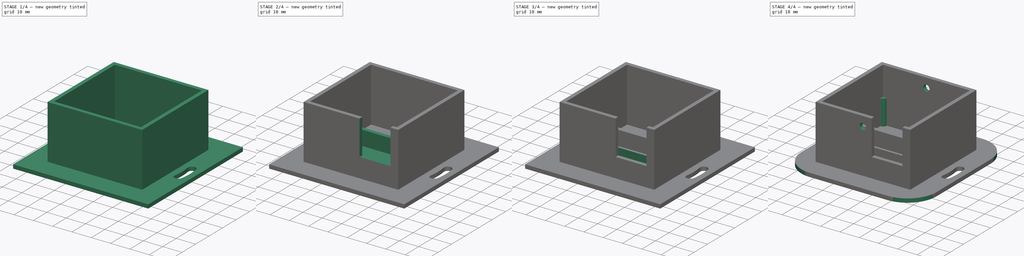
[diagram: build sequence overview — one tinted view per stage of 4, left to right]
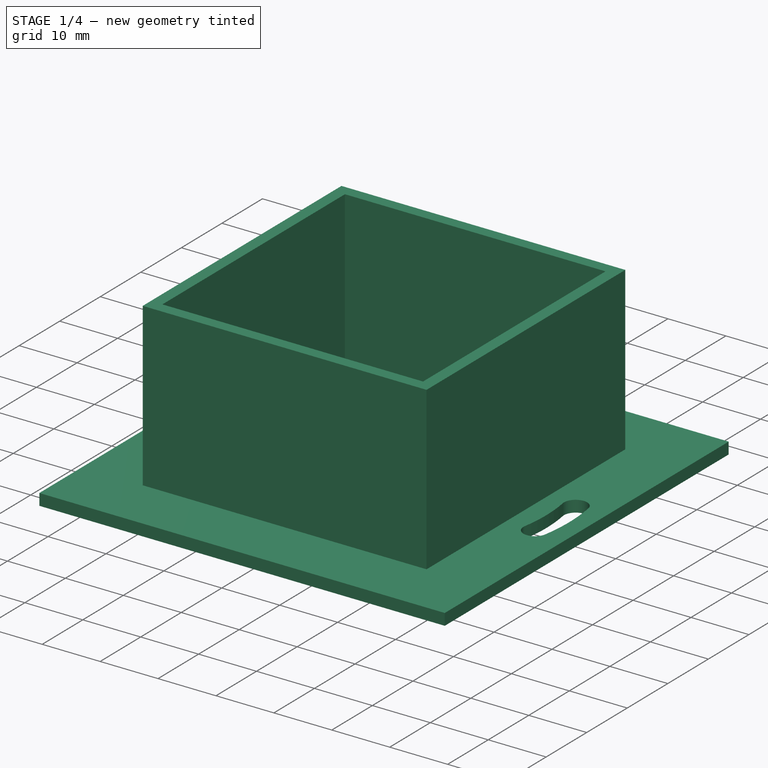
[diagram: stage 1 of 4 — iso view after this stage's code; geometry added in this stage tinted green]
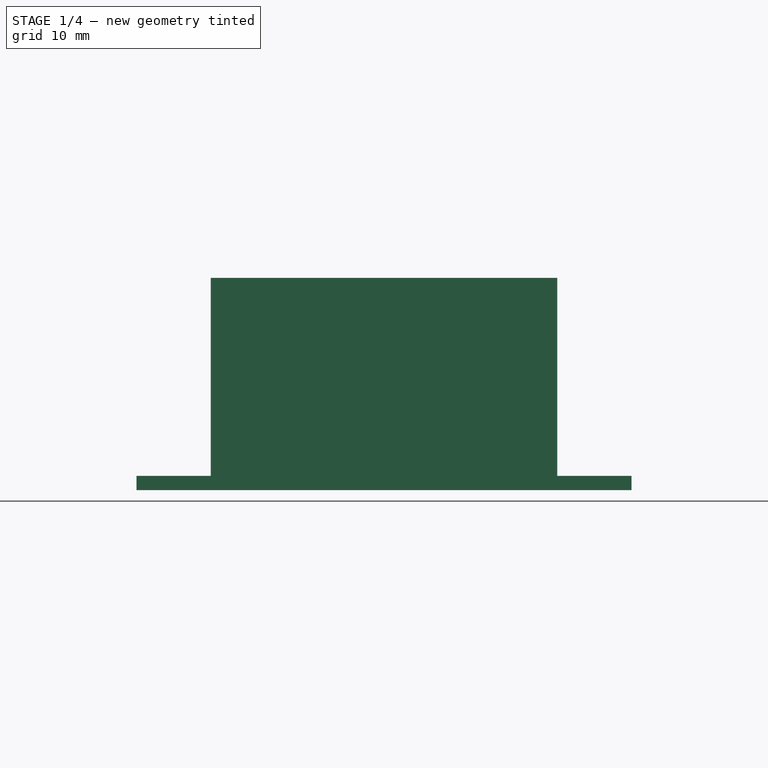
[diagram: stage 1 of 4 — front view after this stage's code; geometry added in this stage tinted green]
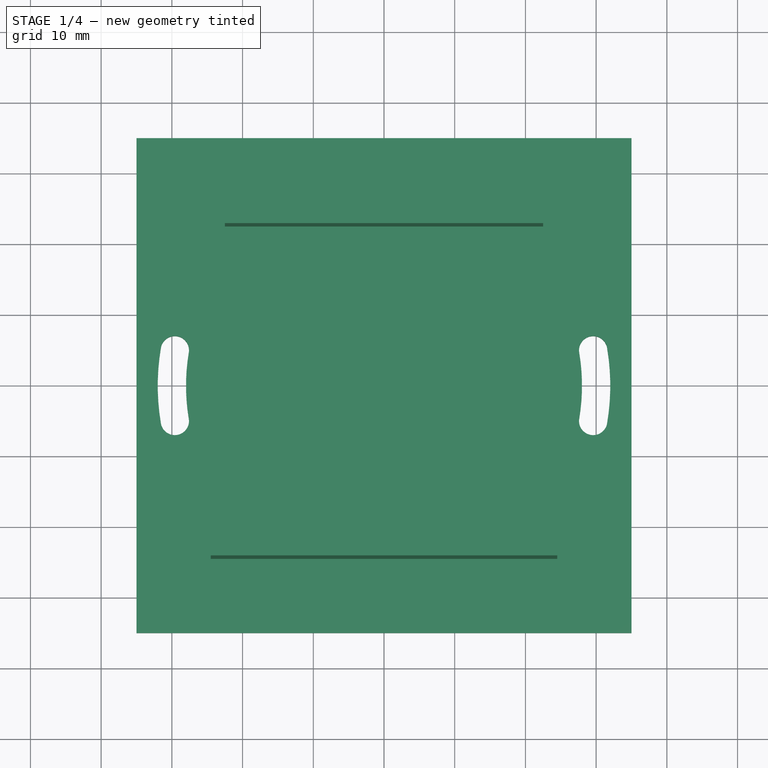
[diagram: stage 1 of 4 — top view after this stage's code; geometry added in this stage tinted green]
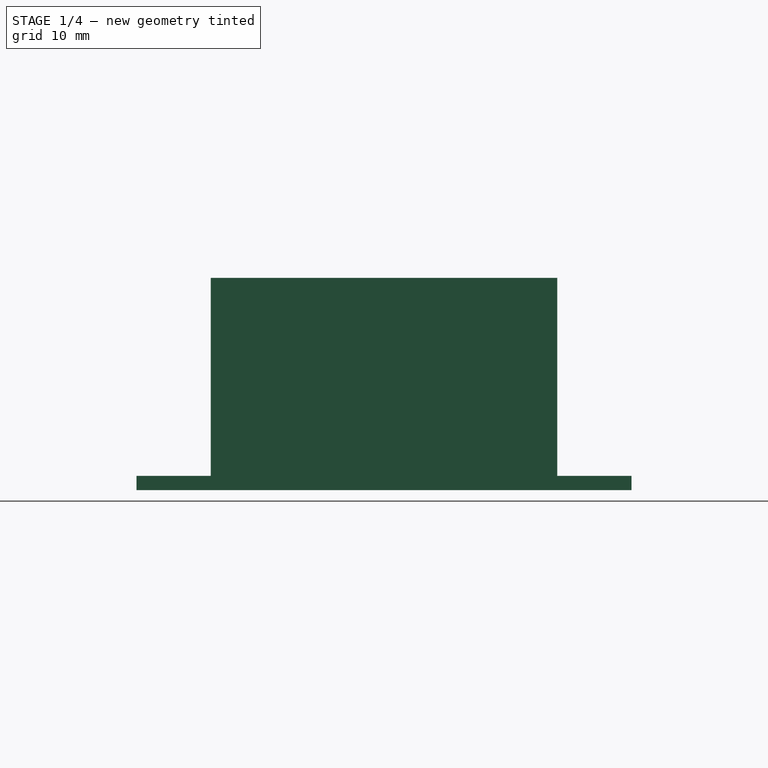
[diagram: stage 1 of 4 — right view after this stage's code; geometry added in this stage tinted green]
FCSTD DOCUMENT  (FreeCAD 0.19R)
Label: box
License: All rights reserved
LicenseURL: http://en.wikipedia.org/wiki/All_rights_reserved
objects: Sketcher::SketchObject×11, PartDesign::Pocket×6, PartDesign::Pad×5, PartDesign::Fillet×1, PartDesign::Body×1
note: 36 computed .brp shape members not serialized (recipe doc carries the construction recipe); baked Part::Feature solids carry a one-line shape summary decoded from their .brp

FEATURE [Sketcher::SketchObject] Sketch
  FullyConstrained = true
  MapMode = 5
  Support = -> [XY_Plane]
  sketch-geometry (12):
    g0: LineSegment StartX=-35 StartY=35 StartZ=0 EndX=35 EndY=35 EndZ=0
    g1: LineSegment StartX=35 StartY=35 StartZ=0 EndX=35 EndY=-35 EndZ=0
    g2: LineSegment StartX=35 StartY=-35 StartZ=0 EndX=-35 EndY=-35 EndZ=0
    g3: LineSegment StartX=-35 StartY=-35 StartZ=0 EndX=-35 EndY=35 EndZ=0
    g4: ArcOfCircle CenterX=0 CenterY=0 CenterZ=0 NormalX=0 NormalY=0 NormalZ=1 AngleXU=0 Radius=28 StartAngle=6.11574 EndAngle=6.45063
    g5: ArcOfCircle CenterX=0 CenterY=0 CenterZ=0 NormalX=0 NormalY=0 NormalZ=1 AngleXU=0 Radius=32 StartAngle=6.11574 EndAngle=6.45063
    g6: ArcOfCircle CenterX=0 CenterY=0 CenterZ=0 NormalX=0 NormalY=0 NormalZ=1 AngleXU=0 Radius=28 StartAngle=2.97414 EndAngle=3.30904
    g7: ArcOfCircle CenterX=0 CenterY=0 CenterZ=0 NormalX=0 NormalY=0 NormalZ=1 AngleXU=0 Radius=32 StartAngle=2.97414 EndAngle=3.30904
    g8: ArcOfCircle CenterX=-29.5804 CenterY=5 CenterZ=0 NormalX=0 NormalY=0 NormalZ=1 AngleXU=0 Radius=2 StartAngle=6.11574 EndAngle=9.25733
    g9: ArcOfCircle CenterX=-29.5804 CenterY=-5 CenterZ=0 NormalX=0 NormalY=0 NormalZ=1 AngleXU=0 Radius=2 StartAngle=3.30904 EndAngle=6.45063
    g10: ArcOfCircle CenterX=29.5804 CenterY=5 CenterZ=0 NormalX=0 NormalY=0 NormalZ=1 AngleXU=0 Radius=2 StartAngle=0.167448 EndAngle=3.30904
    g11: ArcOfCircle CenterX=29.5804 CenterY=-5 CenterZ=0 NormalX=0 NormalY=0 NormalZ=1 AngleXU=0 Radius=2 StartAngle=2.97414 EndAngle=6.11574
  constraints (30):
    c: Coincident(g0,g1)
    c: Coincident(g1,g2)
    c: Coincident(g2,g3)
    c: Coincident(g3,g0)
    c: Horizontal(g2)
    c: Vertical(g3)
    c: DistanceY(g1,g1) = 70
    c: DistanceX(g0,g0) = 70
    c: Symmetric(g0,g0,g-2)
    c: Symmetric(g1,g0,g-1)
    c: Coincident(g4,g-1)
    c: Coincident(g5,g4)
    c: Coincident(g6,g4)
    c: Coincident(g7,g4)
    c: Tangent(g11,g4) = 1.5708
    c: Tangent(g11,g5) = -1.5708
    c: Tangent(g10,g5) = -1.5708
    c: Tangent(g10,g4) = 1.5708
    c: Radius(g10) = 2
    c: Tangent(g8,g6) = 1.5708
    c: Tangent(g8,g7) = -1.5708
    c: Tangent(g9,g6) = 1.5708
    c: Tangent(g9,g7) = -1.5708
    c: Equal(g10,g8)
    c: Horizontal(g6,g4)
    c: Horizontal(g6,g4)
    c: Radius(g4) = 28
    c: Radius(g6) = 28
    c: DistanceY(g-1,g8) = 5
    c: DistanceY(g9,g-1) = 5
FEATURE [PartDesign::Pad] Pad
  Direction = (1,1,1)
  Length = 2
  Length2 = 100
  Profile = -> Sketch
  Type = 0
FEATURE [Sketcher::SketchObject] Sketch001
  FullyConstrained = true
  MapMode = 5
  Placement = pos=(0,0,2) rot=(0,0,1;0rad)
  Support = -> [Pad]
  sketch-geometry (4):
    g0: LineSegment StartX=-24.5 StartY=24.5 StartZ=0 EndX=24.5 EndY=24.5 EndZ=0
    g1: LineSegment StartX=24.5 StartY=24.5 StartZ=0 EndX=24.5 EndY=-24.5 EndZ=0
    g2: LineSegment StartX=24.5 StartY=-24.5 StartZ=0 EndX=-24.5 EndY=-24.5 EndZ=0
    g3: LineSegment StartX=-24.5 StartY=-24.5 StartZ=0 EndX=-24.5 EndY=24.5 EndZ=0
  constraints (10):
    c: Coincident(g0,g1)
    c: Coincident(g1,g2)
    c: Coincident(g2,g3)
    c: Coincident(g3,g0)
    c: Horizontal(g2)
    c: Vertical(g3)
    c: DistanceX(g0,g0) = 49
    c: DistanceY(g1,g1) = 49
    c: Symmetric(g1,g0,g-1)
    c: Symmetric(g0,g0,g-2)
FEATURE [PartDesign::Pad] Pad001
  BaseFeature = -> Pad
  Direction = (1,1,1)
  Length = 28
  Length2 = 100
  Profile = -> Sketch001
  Type = 0
FEATURE [Sketcher::SketchObject] Sketch002
  FullyConstrained = true
  MapMode = 5
  Placement = pos=(0,0,30) rot=(0,0,1;0rad)
  Support = -> [Pad001]
  sketch-geometry (4):
    g0: LineSegment StartX=-22.5 StartY=22.5 StartZ=0 EndX=22.5 EndY=22.5 EndZ=0
    g1: LineSegment StartX=22.5 StartY=22.5 StartZ=0 EndX=22.5 EndY=-22.5 EndZ=0
    g2: LineSegment StartX=22.5 StartY=-22.5 StartZ=0 EndX=-22.5 EndY=-22.5 EndZ=0
    g3: LineSegment StartX=-22.5 StartY=-22.5 StartZ=0 EndX=-22.5 EndY=22.5 EndZ=0
  constraints (10):
    c: Coincident(g0,g1)
    c: Coincident(g1,g2)
    c: Coincident(g2,g3)
    c: Coincident(g3,g0)
    c: Horizontal(g2)
    c: Vertical(g3)
    c: DistanceX(g0,g0) = 45
    c: DistanceY(g1,g1) = 45
    c: Symmetric(g0,g0,g-2)
    c: Symmetric(g0,g1,g-1)
FEATURE [PartDesign::Pocket] Pocket
  BaseFeature = -> Pad001
  Length = 28
  Length2 = 100
  Profile = -> Sketch002
  Type = 0
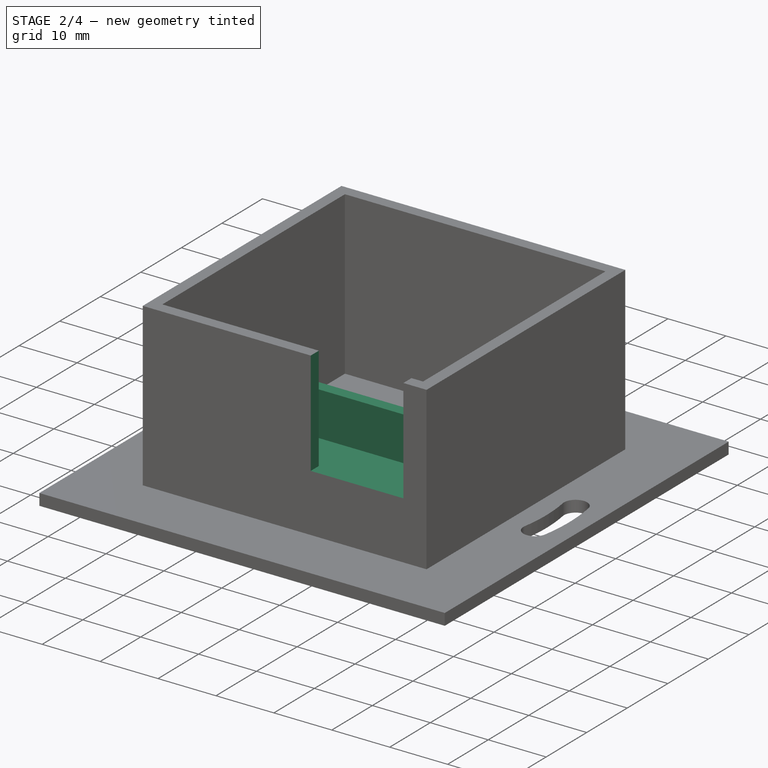
[diagram: stage 2 of 4 — iso view after this stage's code; geometry added in this stage tinted green]
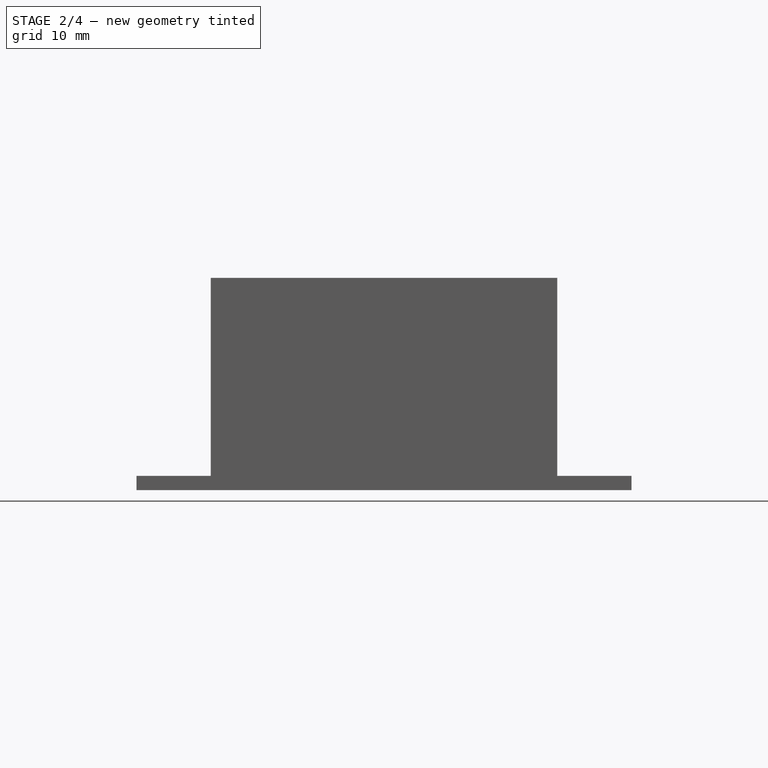
[diagram: stage 2 of 4 — front view after this stage's code; geometry added in this stage tinted green]
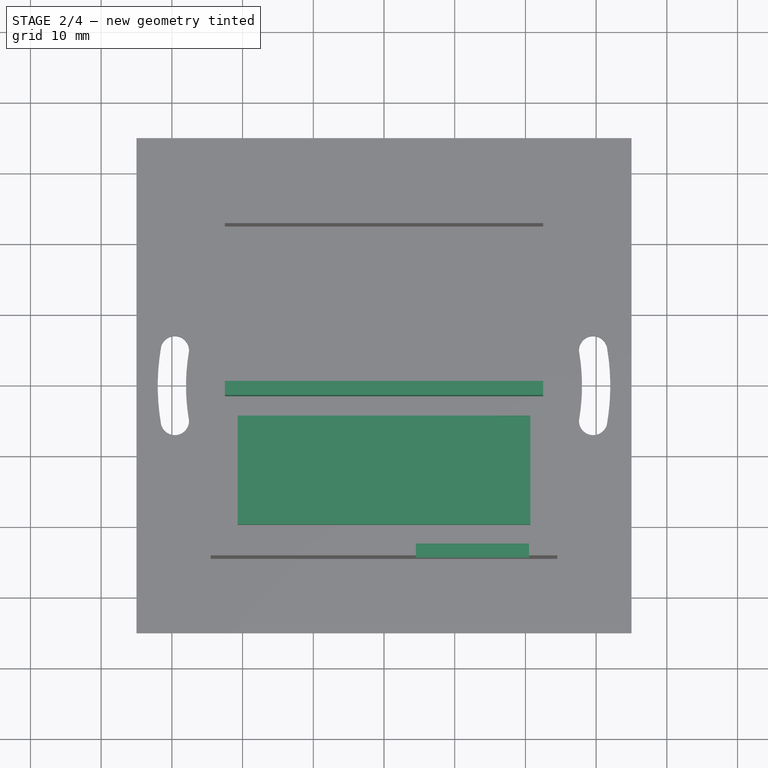
[diagram: stage 2 of 4 — top view after this stage's code; geometry added in this stage tinted green]
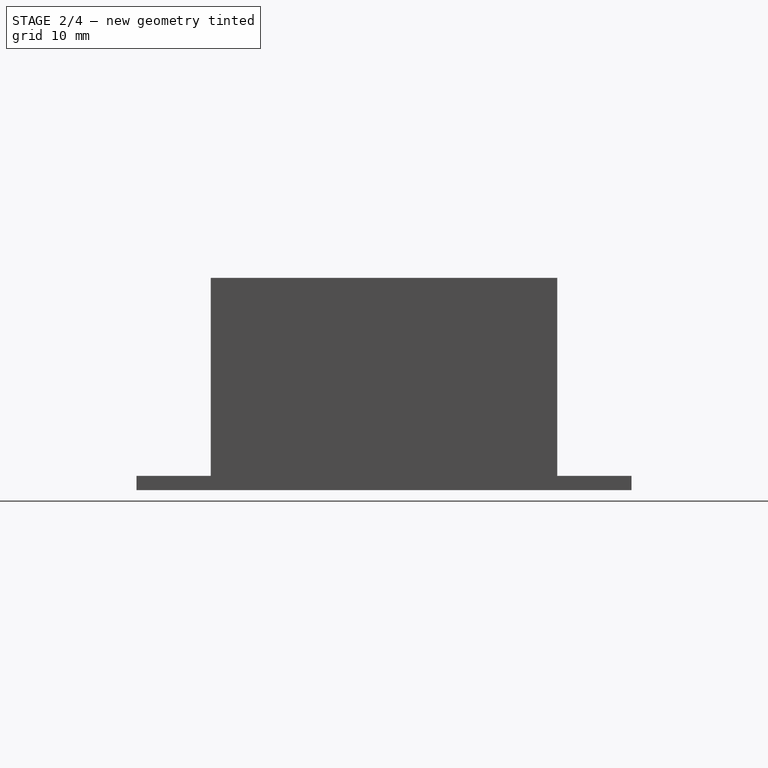
[diagram: stage 2 of 4 — right view after this stage's code; geometry added in this stage tinted green]
FEATURE [Sketcher::SketchObject] Sketch003
  FullyConstrained = false
  MapMode = 5
  Placement = pos=(0,0,30) rot=(0,0,1;0rad)
  Support = -> [Pocket]
  sketch-geometry (4):
    g0: LineSegment StartX=4.5 StartY=-18.2576 StartZ=0 EndX=20.5 EndY=-18.2576 EndZ=0
    g1: LineSegment StartX=20.5 StartY=-18.2576 StartZ=0 EndX=20.5 EndY=-29.3564 EndZ=0
    g2: LineSegment StartX=20.5 StartY=-29.3564 StartZ=0 EndX=4.5 EndY=-29.3564 EndZ=0
    g3: LineSegment StartX=4.5 StartY=-29.3564 StartZ=0 EndX=4.5 EndY=-18.2576 EndZ=0
  constraints (10):
    c: Coincident(g0,g1)
    c: Coincident(g1,g2)
    c: Coincident(g2,g3)
    c: Coincident(g3,g0)
    c: Horizontal(g0)
    c: Horizontal(g2)
    c: Vertical(g1)
    c: Vertical(g3)
    c: DistanceX(g0,g0) = 16
    c: DistanceX(g-1,g0) = 20.5
FEATURE [PartDesign::Pocket] Pocket001
  BaseFeature = -> Pocket
  Length = 18
  Length2 = 100
  Profile = -> Sketch003
  Type = 0
FEATURE [Sketcher::SketchObject] Sketch004
  FullyConstrained = true
  MapMode = 5
  Placement = pos=(0,0,2) rot=(0,0,1;0rad)
  Support = -> [Pocket001]
  sketch-geometry (4):
    g0: LineSegment StartX=-22.5 StartY=0.5 StartZ=0 EndX=22.5 EndY=0.5 EndZ=0
    g1: LineSegment StartX=22.5 StartY=0.5 StartZ=0 EndX=22.5 EndY=-1.5 EndZ=0
    g2: LineSegment StartX=22.5 StartY=-1.5 StartZ=0 EndX=-22.5 EndY=-1.5 EndZ=0
    g3: LineSegment StartX=-22.5 StartY=-1.5 StartZ=0 EndX=-22.5 EndY=0.5 EndZ=0
  constraints (11):
    c: Coincident(g0,g1)
    c: Vertical(g1)
    c: Symmetric(g0,g0,g-2)
    c: DistanceX(g0,g0) = 45
    c: DistanceY(g1,g1) = 2
    c: DistanceY(g-1,g0) = 0.5
    c: Coincident(g2,g1)
    c: Horizontal(g2)
    c: Coincident(g3,g2)
    c: Coincident(g3,g0)
    c: Vertical(g3)
FEATURE [PartDesign::Pad] Pad002
  BaseFeature = -> Pocket001
  Direction = (1,1,1)
  Length = 10
  Length2 = 100
  Profile = -> Sketch004
  Type = 0
FEATURE [Sketcher::SketchObject] Sketch005
  FullyConstrained = true
  MapMode = 5
  Placement = pos=(0,0,2) rot=(0,0,1;0rad)
  Support = -> [Pad002]
  sketch-geometry (4):
    g0: LineSegment StartX=-20.7 StartY=-4.3 StartZ=0 EndX=20.7 EndY=-4.3 EndZ=0
    g1: LineSegment StartX=20.7 StartY=-4.3 StartZ=0 EndX=20.7 EndY=-19.7 EndZ=0
    g2: LineSegment StartX=20.7 StartY=-19.7 StartZ=0 EndX=-20.7 EndY=-19.7 EndZ=0
    g3: LineSegment StartX=-20.7 StartY=-19.7 StartZ=0 EndX=-20.7 EndY=-4.3 EndZ=0
  constraints (11):
    c: Coincident(g0,g1)
    c: Coincident(g1,g2)
    c: Coincident(g2,g3)
    c: Coincident(g3,g0)
    c: Horizontal(g0)
    c: Vertical(g1)
    c: Vertical(g3)
    c: DistanceX(g0,g0) = 41.4
    c: DistanceY(g1,g1) = 15.4
    c: Symmetric(g1,g2,g-2)
    c: DistanceY(g0,g-1) = 4.3
FEATURE [PartDesign::Pad] Pad003
  BaseFeature = -> Pad002
  Direction = (1,1,1)
  Length = 4
  Length2 = 100
  Profile = -> Sketch005
  Type = 0
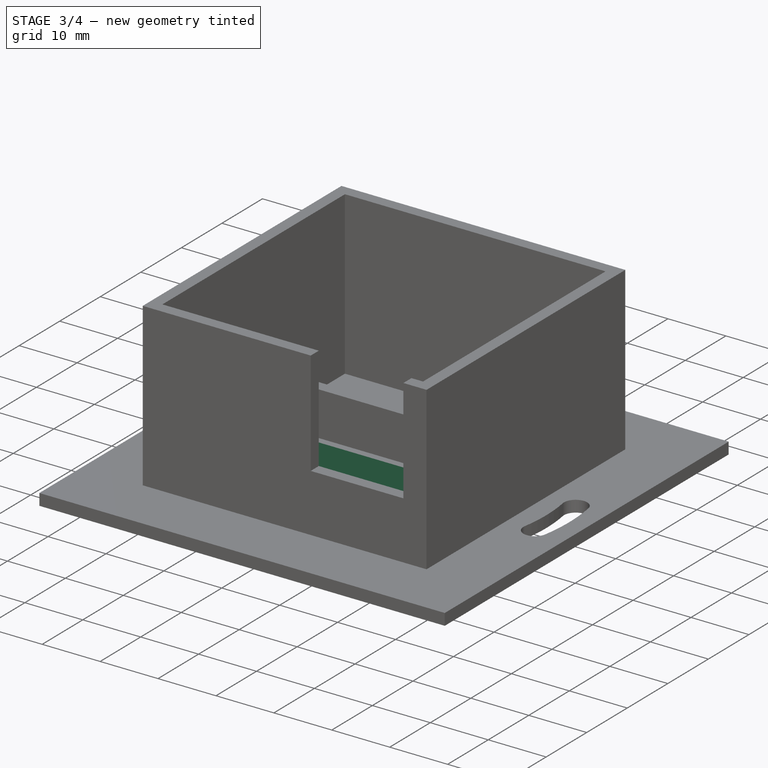
[diagram: stage 3 of 4 — iso view after this stage's code; geometry added in this stage tinted green]
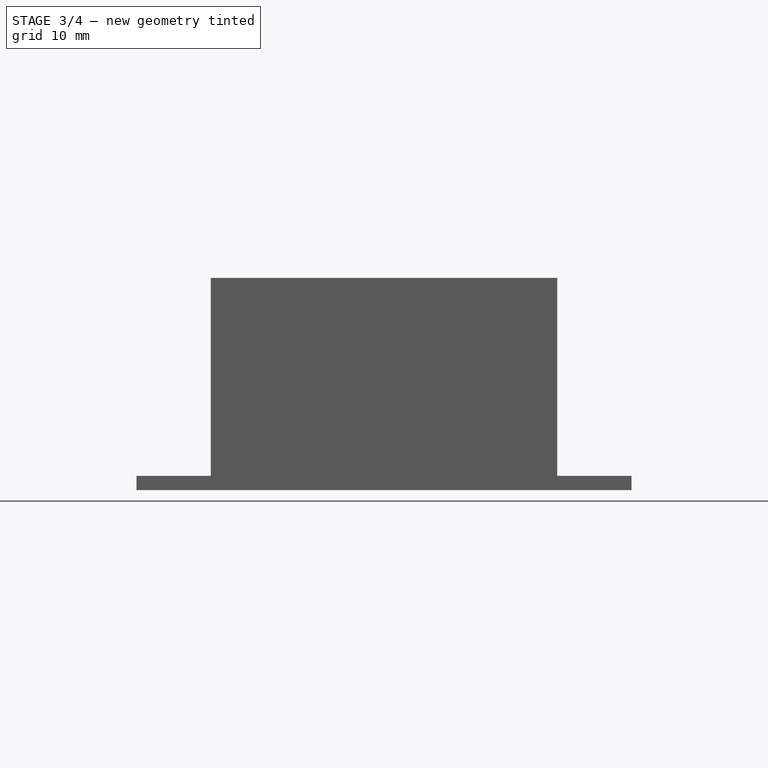
[diagram: stage 3 of 4 — front view after this stage's code; geometry added in this stage tinted green]
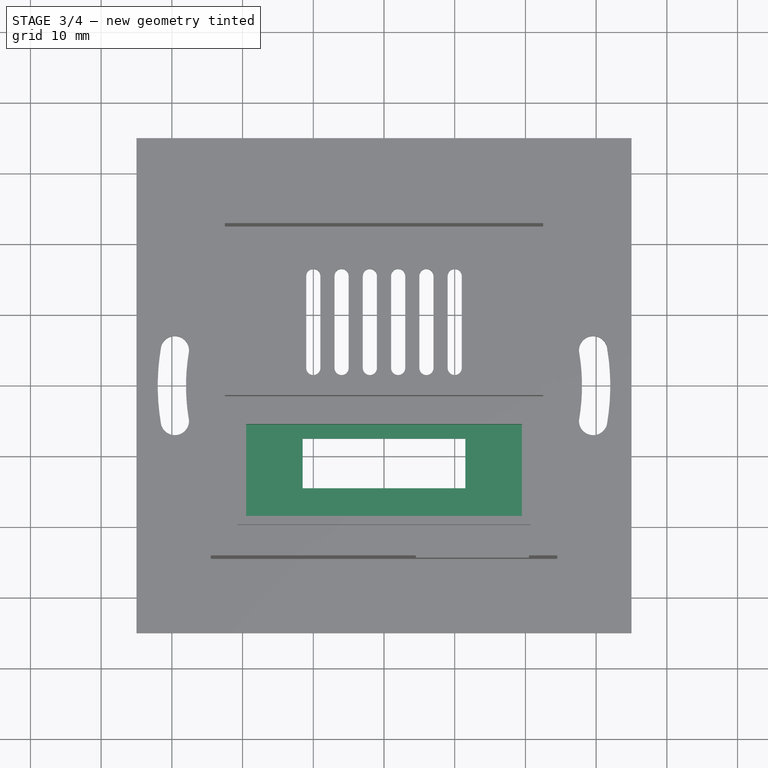
[diagram: stage 3 of 4 — top view after this stage's code; geometry added in this stage tinted green]
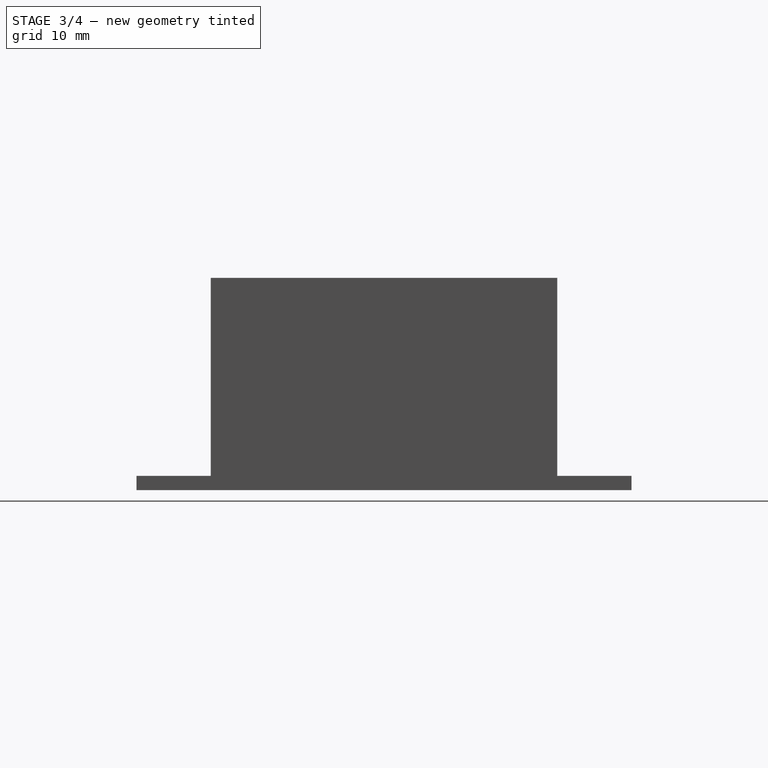
[diagram: stage 3 of 4 — right view after this stage's code; geometry added in this stage tinted green]
FEATURE [Sketcher::SketchObject] Sketch006
  FullyConstrained = true
  MapMode = 5
  Placement = pos=(0,0,6) rot=(0,0,1;0rad)
  Support = -> [Pad003]
  sketch-geometry (4):
    g0: LineSegment StartX=-19.5 StartY=-5.5 StartZ=0 EndX=19.5 EndY=-5.5 EndZ=0
    g1: LineSegment StartX=19.5 StartY=-5.5 StartZ=0 EndX=19.5 EndY=-18.5 EndZ=0
    g2: LineSegment StartX=19.5 StartY=-18.5 StartZ=0 EndX=-19.5 EndY=-18.5 EndZ=0
    g3: LineSegment StartX=-19.5 StartY=-18.5 StartZ=0 EndX=-19.5 EndY=-5.5 EndZ=0
  constraints (11):
    c: Coincident(g0,g1)
    c: Coincident(g1,g2)
    c: Coincident(g2,g3)
    c: Coincident(g3,g0)
    c: Horizontal(g2)
    c: Vertical(g1)
    c: Vertical(g3)
    c: DistanceY(g1,g1) = 13
    c: DistanceX(g0,g0) = 39
    c: Symmetric(g0,g0,g-2)
    c: DistanceY(g0,g-1) = 5.5
FEATURE [PartDesign::Pocket] Pocket002
  BaseFeature = -> Pad003
  Length = 5
  Length2 = 100
  Profile = -> Sketch006
  Type = 0
FEATURE [Sketcher::SketchObject] Sketch007
  FullyConstrained = true
  MapMode = 5
  Placement = pos=(0,0,1) rot=(0,0,1;0rad)
  Support = -> [Pocket002]
  sketch-geometry (4):
    g0: LineSegment StartX=-11.5 StartY=-7.5 StartZ=0 EndX=11.5 EndY=-7.5 EndZ=0
    g1: LineSegment StartX=11.5 StartY=-7.5 StartZ=0 EndX=11.5 EndY=-14.5 EndZ=0
    g2: LineSegment StartX=11.5 StartY=-14.5 StartZ=0 EndX=-11.5 EndY=-14.5 EndZ=0
    g3: LineSegment StartX=-11.5 StartY=-14.5 StartZ=0 EndX=-11.5 EndY=-7.5 EndZ=0
  constraints (11):
    c: Coincident(g0,g1)
    c: Coincident(g1,g2)
    c: Coincident(g2,g3)
    c: Coincident(g3,g0)
    c: Horizontal(g2)
    c: Vertical(g1)
    c: Vertical(g3)
    c: DistanceY(g1,g1) = 7
    c: DistanceX(g0,g0) = 23
    c: Symmetric(g0,g0,g-2)
    c: DistanceY(g0,g-1) = 7.5
FEATURE [PartDesign::Pocket] Pocket003
  BaseFeature = -> Pocket002
  Length = 5
  Length2 = 100
  Profile = -> Sketch007
  Type = 1
FEATURE [Sketcher::SketchObject] Sketch008
  FullyConstrained = true
  MapMode = 5
  Placement = pos=(0,0,2) rot=(0,0,1;0rad)
  Support = -> [Pocket003]
  sketch-geometry (29):
    g0: LineSegment StartX=-11 StartY=15.5 StartZ=0 EndX=-11 EndY=2.5 EndZ=0
    g1: LineSegment StartX=-9 StartY=15.5 StartZ=0 EndX=-9 EndY=2.5 EndZ=0
    g2: LineSegment StartX=-7 StartY=15.5 StartZ=0 EndX=-7 EndY=2.5 EndZ=0
    g3: LineSegment StartX=-5 StartY=15.5 StartZ=0 EndX=-5 EndY=2.5 EndZ=0
    g4: LineSegment StartX=-3 StartY=15.5 StartZ=0 EndX=-3 EndY=2.5 EndZ=0
    g5: LineSegment StartX=-1 StartY=15.5 StartZ=0 EndX=-1 EndY=2.5 EndZ=0
    g6: LineSegment StartX=1 StartY=15.5 StartZ=0 EndX=1 EndY=2.5 EndZ=0
    g7: LineSegment StartX=3 StartY=15.5 StartZ=0 EndX=3 EndY=2.5 EndZ=0
    g8: LineSegment StartX=5 StartY=15.5 StartZ=0 EndX=5 EndY=2.5 EndZ=0
    g9: LineSegment StartX=7 StartY=15.5 StartZ=0 EndX=7 EndY=2.5 EndZ=0
    g10: LineSegment StartX=9 StartY=15.5 StartZ=0 EndX=9 EndY=2.5 EndZ=0
    g11: LineSegment StartX=11 StartY=15.5 StartZ=0 EndX=11 EndY=2.5 EndZ=0
    g12: ArcOfCircle CenterX=-10 CenterY=2.5 CenterZ=0 NormalX=0 NormalY=0 NormalZ=1 AngleXU=0 Radius=1 StartAngle=3.14159 EndAngle=6.28319
    g13: ArcOfCircle CenterX=-6 CenterY=2.5 CenterZ=0 NormalX=0 NormalY=0 NormalZ=1 AngleXU=0 Radius=1 StartAngle=3.14159 EndAngle=6.28319
    g14: ArcOfCircle CenterX=-2 CenterY=2.5 CenterZ=0 NormalX=0 NormalY=0 NormalZ=1 AngleXU=0 Radius=1 StartAngle=3.14159 EndAngle=6.28319
    g15: ArcOfCircle CenterX=2 CenterY=2.5 CenterZ=0 NormalX=0 NormalY=0 NormalZ=1 AngleXU=0 Radius=1 StartAngle=3.14159 EndAngle=6.28319
    g16: ArcOfCircle CenterX=6 CenterY=2.5 CenterZ=0 NormalX=0 NormalY=0 NormalZ=1 AngleXU=0 Radius=1 StartAngle=3.14159 EndAngle=6.28319
    g17: ArcOfCircle CenterX=10 CenterY=2.5 CenterZ=0 NormalX=0 NormalY=0 NormalZ=1 AngleXU=0 Radius=1 StartAngle=3.14159 EndAngle=6.28319
    g18: ArcOfCircle CenterX=10 CenterY=15.5 CenterZ=0 NormalX=0 NormalY=0 NormalZ=1 AngleXU=0 Radius=1 StartAngle=0 EndAngle=3.14159
    g19: ArcOfCircle CenterX=6 CenterY=15.5 CenterZ=0 NormalX=0 NormalY=0 NormalZ=1 AngleXU=0 Radius=1 StartAngle=6e-16 EndAngle=3.14159
    g20: ArcOfCircle CenterX=2 CenterY=15.5 CenterZ=0 NormalX=0 NormalY=0 NormalZ=1 AngleXU=0 Radius=1 StartAngle=0 EndAngle=3.14159
    g21: ArcOfCircle CenterX=-2 CenterY=15.5 CenterZ=0 NormalX=0 NormalY=0 NormalZ=1 AngleXU=0 Radius=1 StartAngle=0 EndAngle=3.14159
    g22: ArcOfCircle CenterX=-6 CenterY=15.5 CenterZ=0 NormalX=0 NormalY=0 NormalZ=1 AngleXU=0 Radius=1 StartAngle=8e-16 EndAngle=3.14159
    g23: ArcOfCircle CenterX=-10 CenterY=15.5 CenterZ=0 NormalX=0 NormalY=0 NormalZ=1 AngleXU=0 Radius=1 StartAngle=9e-16 EndAngle=3.14159
    g24: LineSegment StartX=-9 StartY=15.5 StartZ=0 EndX=-7 EndY=15.5 EndZ=0
    g25: LineSegment StartX=-5 StartY=15.5 StartZ=0 EndX=-3 EndY=15.5 EndZ=0
    g26: LineSegment StartX=-1 StartY=15.5 StartZ=0 EndX=1 EndY=15.5 EndZ=0
    g27: LineSegment StartX=3 StartY=15.5 StartZ=0 EndX=5 EndY=15.5 EndZ=0
    g28: LineSegment StartX=7 StartY=15.5 StartZ=0 EndX=9 EndY=15.5 EndZ=0
  constraints (93):
    c: Vertical(g0)
    c: Vertical(g1)
    c: Vertical(g2)
    c: Vertical(g3)
    c: Vertical(g5)
    c: Vertical(g4)
    c: Vertical(g6)
    c: Vertical(g7)
    c: Vertical(g8)
    c: Vertical(g9)
    c: Vertical(g10)
    c: Vertical(g11)
    c: Symmetric(g6,g5,g-2)
    c: Coincident(g12,g0)
    c: Coincident(g12,g1)
    c: Coincident(g13,g2)
    c: Coincident(g13,g3)
    c: Coincident(g14,g4)
    c: Coincident(g14,g5)
    c: Coincident(g15,g6)
    c: Coincident(g15,g7)
    c: Coincident(g16,g8)
    c: Coincident(g16,g9)
    c: Coincident(g17,g10)
    c: Coincident(g17,g11)
    c: DistanceY(g-1,g11) = 15.5
    c: DistanceY(g11,g11) = 13
    c: Equal(g11,g9)
    c: Equal(g9,g7)
    c: Equal(g7,g5)
    c: Equal(g5,g3)
    c: Equal(g3,g1)
    c: Horizontal(g11,g17)
    c: Horizontal(g17,g10)
    c: Horizontal(g9,g16)
    c: Horizontal(g16,g8)
    c: Horizontal(g7,g15)
    c: Horizontal(g15,g6)
    c: Horizontal(g5,g14)
    c: Horizontal(g14,g4)
    c: Horizontal(g3,g13)
    c: Horizontal(g13,g2)
    c: Horizontal(g1,g12)
    c: Horizontal(g12,g0)
    c: Radius(g17) = 1
    c: Equal(g17,g16)
    c: Equal(g17,g15)
    c: Equal(g17,g14)
    c: Equal(g17,g13)
    c: Equal(g17,g12)
    c: Coincident(g18,g11)
    c: Coincident(g18,g10)
    c: Coincident(g19,g9)
    c: Coincident(g19,g8)
    c: Coincident(g20,g7)
    c: Coincident(g20,g6)
    c: Coincident(g21,g5)
    c: Coincident(g21,g4)
    c: Coincident(g22,g3)
    c: Coincident(g22,g2)
    c: Coincident(g23,g1)
    c: Coincident(g23,g0)
    c: Horizontal(g1,g23)
    c: Horizontal(g23,g0)
    c: Horizontal(g3,g22)
    c: Horizontal(g22,g2)
    c: Horizontal(g5,g21)
    c: Horizontal(g21,g4)
    c: Horizontal(g7,g20)
    c: Horizontal(g20,g6)
    c: Horizontal(g9,g19)
    c: Horizontal(g19,g8)
    c: Horizontal(g11,g18)
    c: Horizontal(g18,g10)
    c: Horizontal(g10,g9)
    c: Horizontal(g8,g7)
    c: Horizontal(g4,g3)
    c: Horizontal(g2,g1)
    c: Coincident(g24,g1)
    c: Coincident(g24,g2)
    c: Coincident(g25,g3)
    c: Coincident(g25,g4)
    c: Coincident(g26,g5)
    c: Coincident(g26,g6)
    c: Coincident(g27,g7)
    c: Coincident(g27,g8)
    c: Coincident(g28,g9)
    c: Coincident(g28,g10)
    c: Equal(g28,g27)
    c: Equal(g27,g26)
    c: Equal(g26,g25)
    c: Equal(g25,g24)
    c: DistanceX(g26,g26) = 2
FEATURE [PartDesign::Pocket] Pocket004
  BaseFeature = -> Pocket003
  Length = 5
  Length2 = 100
  Profile = -> Sketch008
  Type = 0
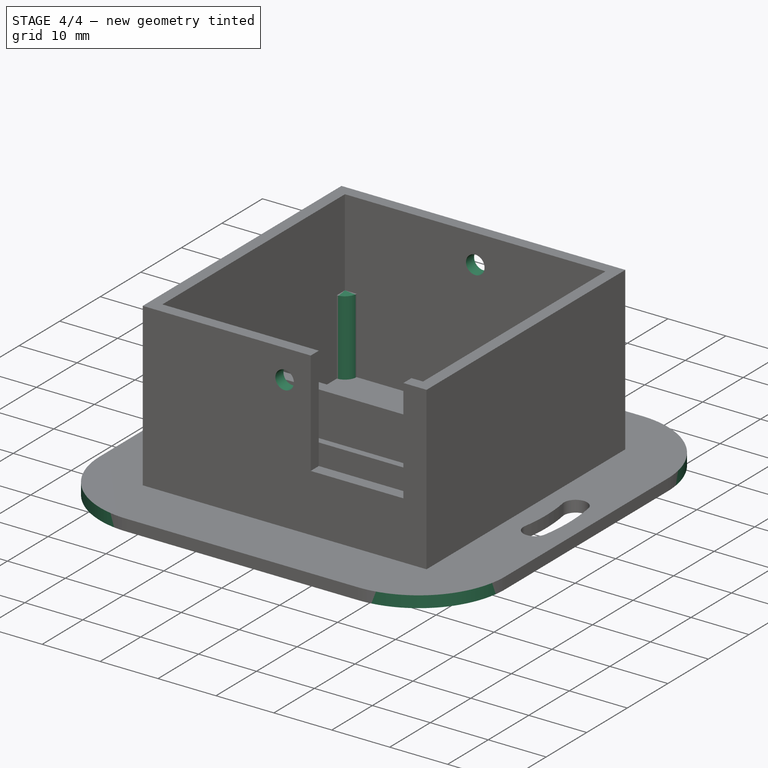
[diagram: stage 4 of 4 — iso view after this stage's code; geometry added in this stage tinted green]
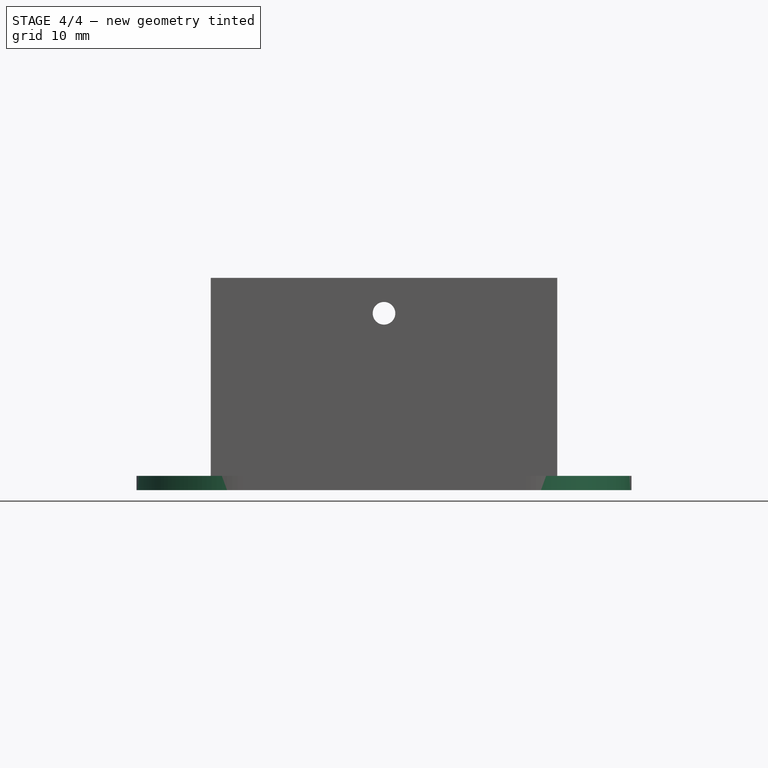
[diagram: stage 4 of 4 — front view after this stage's code; geometry added in this stage tinted green]
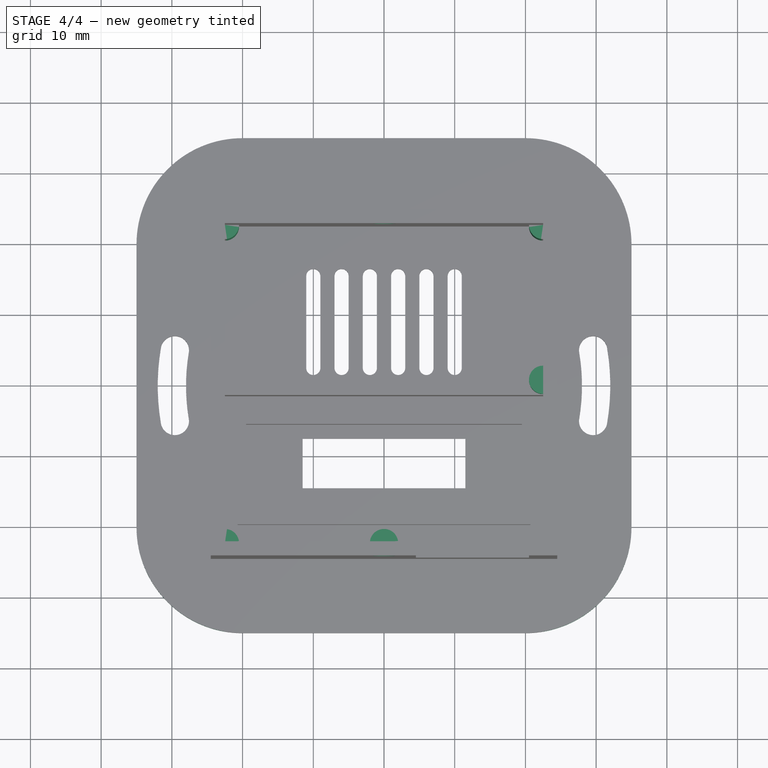
[diagram: stage 4 of 4 — top view after this stage's code; geometry added in this stage tinted green]
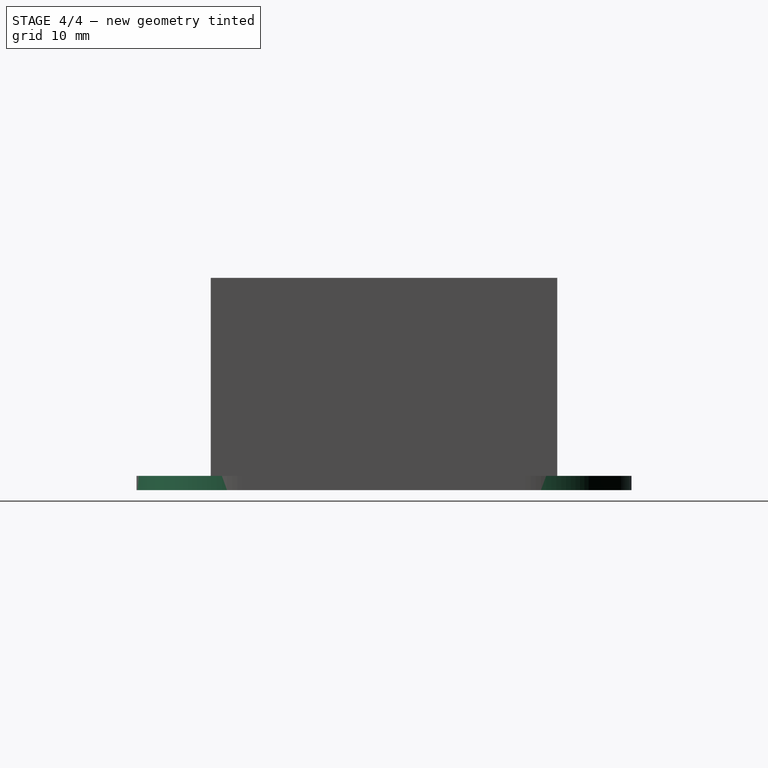
[diagram: stage 4 of 4 — right view after this stage's code; geometry added in this stage tinted green]
FEATURE [Sketcher::SketchObject] Sketch009
  FullyConstrained = true
  MapMode = 5
  Placement = pos=(0,-24.5,0) rot=(1,0,0;1.5708rad)
  Support = -> [Pocket004]
  sketch-geometry (1):
    g0: Circle CenterX=0 CenterY=25 CenterZ=0 NormalX=0 NormalY=0 NormalZ=1 AngleXU=0 Radius=1.6
  constraints (3):
    c: PointOnObject(g0,g-2)
    c: Radius(g0) = 1.6
    c: DistanceY(g-1,g0) = 25
FEATURE [PartDesign::Pocket] Pocket005
  BaseFeature = -> Pocket004
  Length = 5
  Length2 = 100
  Profile = -> Sketch009
  Type = 1
FEATURE [PartDesign::Fillet] Fillet
  Base = -> Pocket005 [Edge1,Edge2,Edge8,Edge5]
  BaseFeature = -> Pocket005
  Radius = 15
  SupportTransform = false
FEATURE [Sketcher::SketchObject] Sketch010
  FullyConstrained = true
  MapMode = 5
  Placement = pos=(0,0,2) rot=(0,0,1;0rad)
  Support = -> [Fillet]
  sketch-geometry (5):
    g0: Circle CenterX=22.5 CenterY=22.5 CenterZ=0 NormalX=0 NormalY=0 NormalZ=1 AngleXU=0 Radius=2
    g1: Circle CenterX=-22.5 CenterY=22.5 CenterZ=0 NormalX=0 NormalY=0 NormalZ=1 AngleXU=0 Radius=2
    g2: Circle CenterX=22.5 CenterY=0.6 CenterZ=0 NormalX=0 NormalY=0 NormalZ=1 AngleXU=0 Radius=2
    g3: Circle CenterX=0 CenterY=-22.5 CenterZ=0 NormalX=0 NormalY=0 NormalZ=1 AngleXU=0 Radius=2
    g4: Circle CenterX=-22.5 CenterY=-22.5 CenterZ=0 NormalX=0 NormalY=0 NormalZ=1 AngleXU=0 Radius=2
  constraints (13):
    c: Radius(g2) = 2
    c: Equal(g2,g3)
    c: Equal(g2,g4)
    c: Equal(g2,g1)
    c: Equal(g2,g0)
    c: Symmetric(g1,g0,g-2)
    c: Symmetric(g4,g1,g-1)
    c: DistanceX(g1,g0) = 45
    c: DistanceY(g4,g1) = 45
    c: Horizontal(g4,g3)
    c: PointOnObject(g3,g-2)
    c: Vertical(g2,g0)
    c: DistanceY(g-1,g2) = 0.6
FEATURE [PartDesign::Pad] Pad004
  BaseFeature = -> Fillet
  Direction = (1,1,1)
  Length = 13
  Length2 = 100
  Profile = -> Sketch010
  Type = 0
FEATURE [PartDesign::Body] Body
  Group = -> [Sketch,Pad,Sketch001,Pad001,Sketch002,Pocket,Sketch003,Pocket001,Sketch004,Pad002,Sketch005,Pad003,Sketch006,Pocket002,Sketch007,Pocket003,Sketch008,Pocket004,Sketch009,Pocket005,Fillet,Sketch010,Pad004]
  Origin = -> Origin
  Tip = -> Pad004
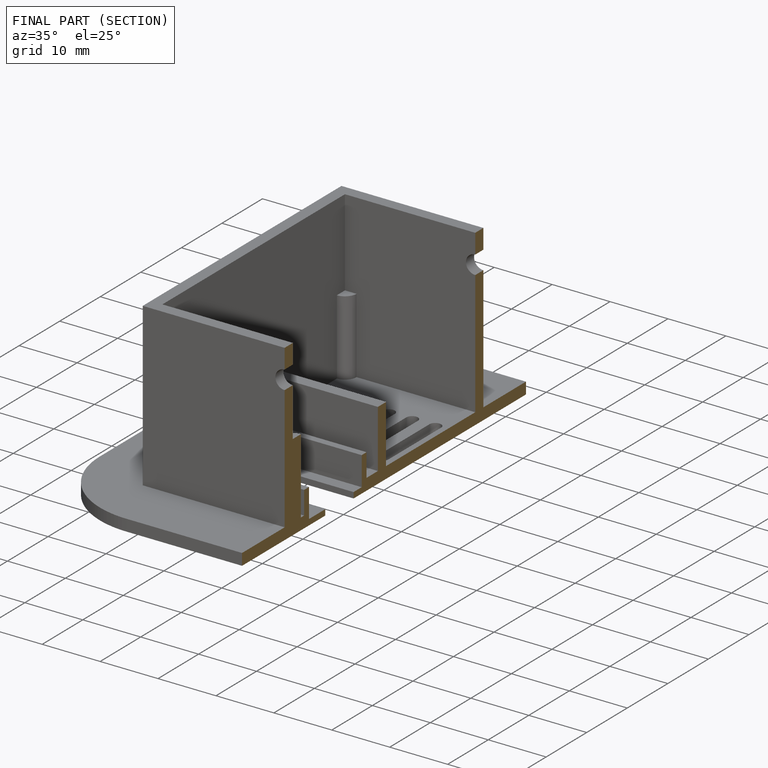
[diagram: finished part — half-section view (interior)]
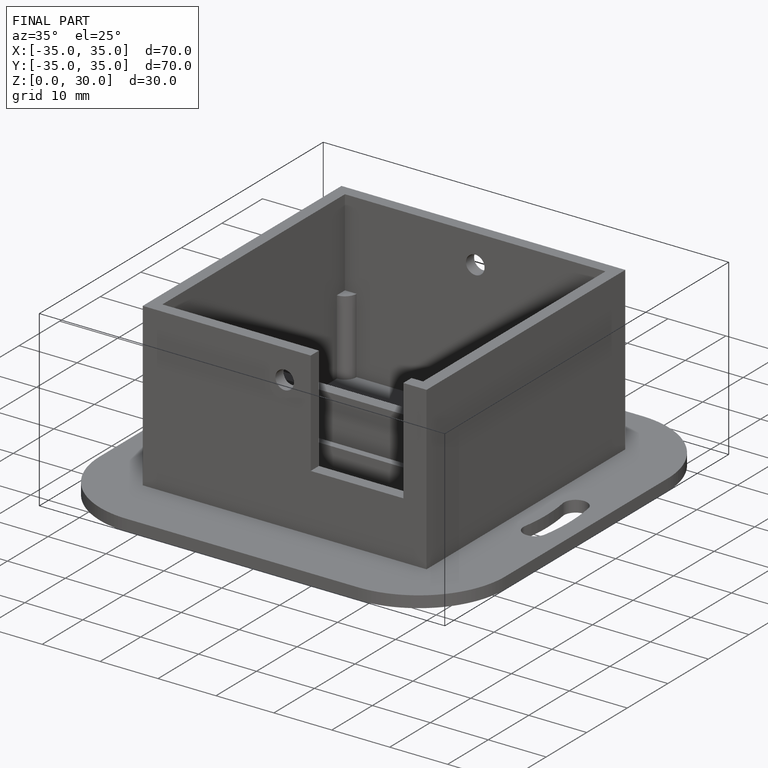
[diagram: finished part — iso view with bounding-box wireframe]
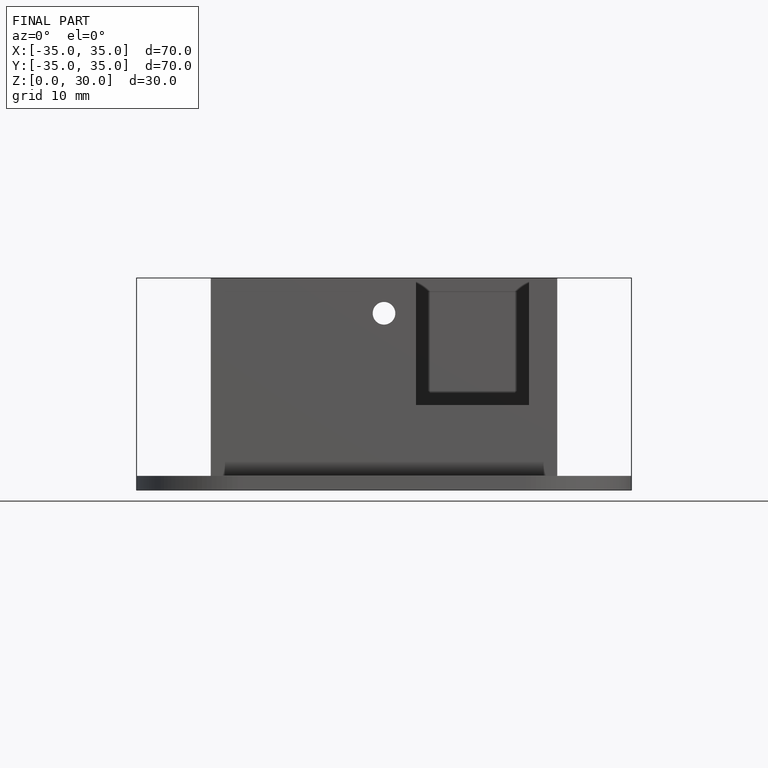
[diagram: finished part — front view with bounding-box wireframe]
